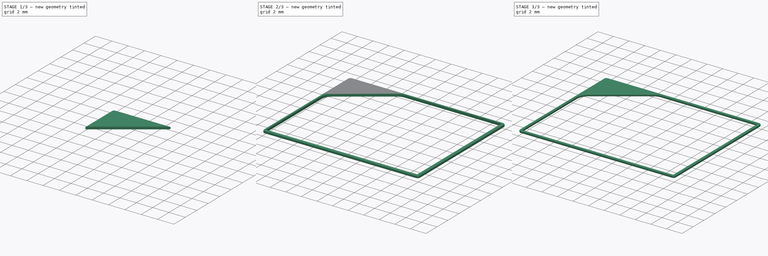
[diagram: build sequence overview — one tinted view per stage of 3, left to right]
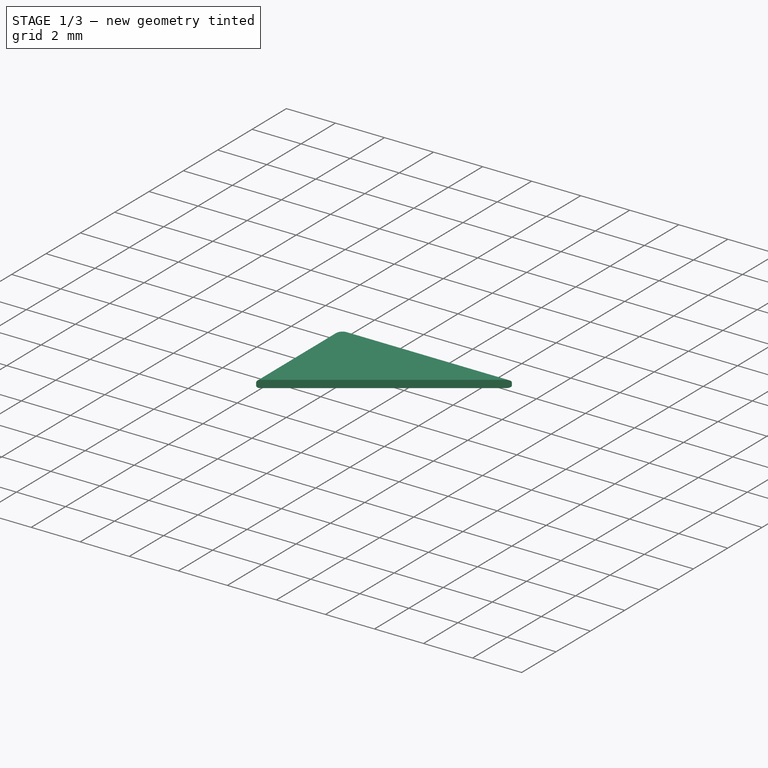
[diagram: stage 1 of 3 — iso view after this stage's code; geometry added in this stage tinted green]
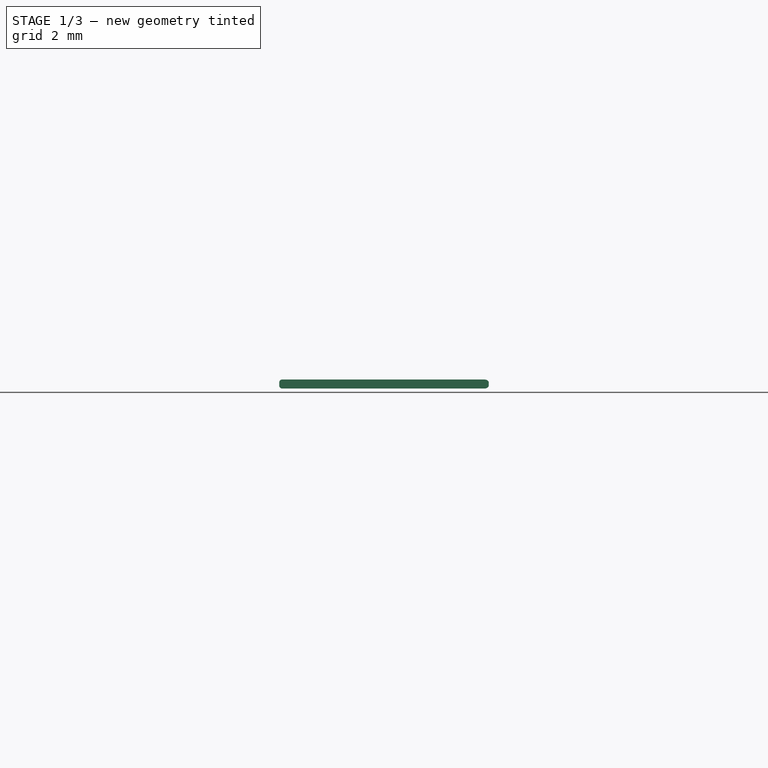
[diagram: stage 1 of 3 — front view after this stage's code; geometry added in this stage tinted green]
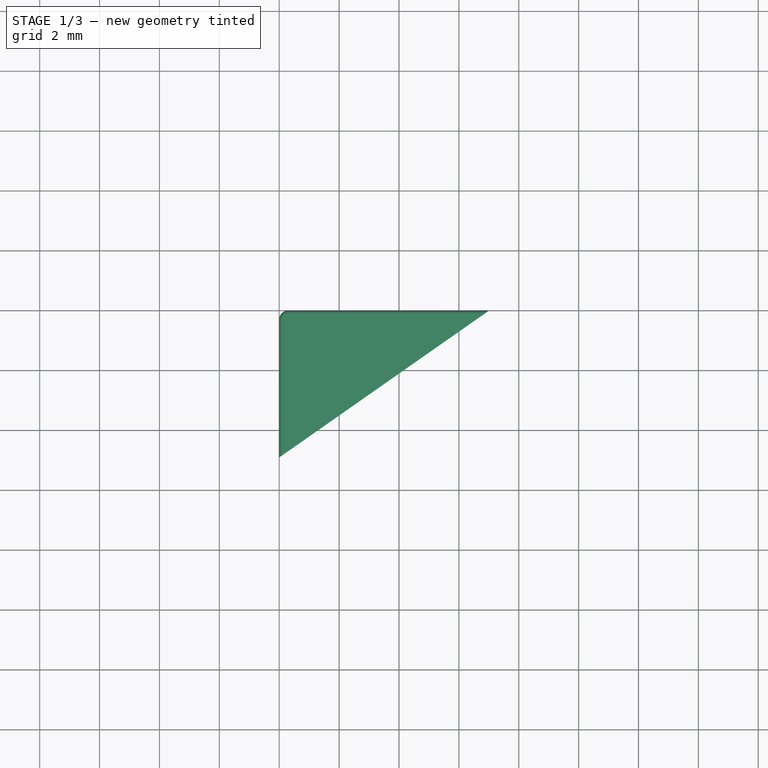
[diagram: stage 1 of 3 — top view after this stage's code; geometry added in this stage tinted green]
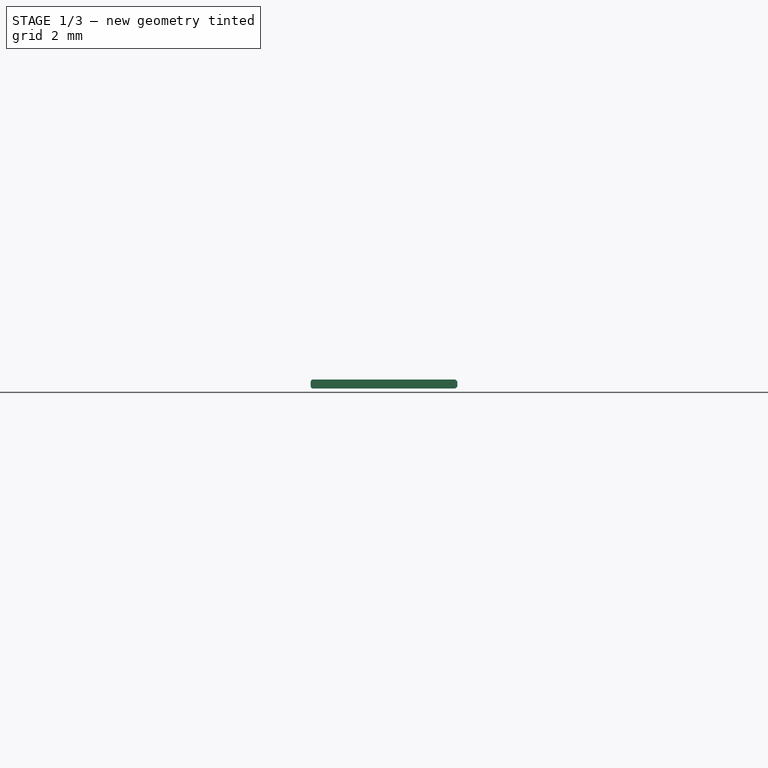
[diagram: stage 1 of 3 — right view after this stage's code; geometry added in this stage tinted green]
FCSTD DOCUMENT  (FreeCAD 0.17R13528 (Git))
Label: NutriFrameNormalV2
License: All rights reserved
LicenseURL: http://en.wikipedia.org/wiki/All_rights_reserved
objects: PartDesign::Fillet×6, Sketcher::SketchObject×2, PartDesign::Pad×2, PartDesign::Body×2
note: 14 computed .brp shape members not serialized (recipe doc carries the construction recipe); baked Part::Feature solids carry a one-line shape summary decoded from their .brp

FEATURE [PartDesign::Body] Body  label="Frame"
  Group = -> [Sketch,Pad,Fillet,Fillet001,Fillet002,Fillet003]
  Origin = -> Origin
  Tip = -> Fillet003
FEATURE [Sketcher::SketchObject] Sketch002
  MapMode = 5
  Support = -> [XY_Plane001]
  sketch-geometry (18):
    g0: LineSegment [constr] StartX=0.3 StartY=0 StartZ=0 EndX=19.7 EndY=0 EndZ=0
    g1: LineSegment [constr] StartX=19.65 StartY=15.7 StartZ=0 EndX=19.65 EndY=0.3 EndZ=0
    g2: LineSegment [constr] StartX=19.65 StartY=0.3 StartZ=0 EndX=0.3 EndY=0.3 EndZ=0
    g3: LineSegment [constr] StartX=0.3 StartY=0.3 StartZ=0 EndX=0.3 EndY=10.3489 EndZ=0
    g4: ArcOfCircle [constr] CenterX=0.3 CenterY=0.3 CenterZ=0 NormalX=0 NormalY=0 NormalZ=1 AngleXU=0 Radius=0.3 StartAngle=3.14159 EndAngle=4.71239
    g5: ArcOfCircle [constr] CenterX=19.7 CenterY=0.3 CenterZ=0 NormalX=0 NormalY=0 NormalZ=1 AngleXU=0 Radius=0.3 StartAngle=4.71239 EndAngle=6.28317
    g6: LineSegment [constr] StartX=20 StartY=15.7 StartZ=0 EndX=20 EndY=0.299995 EndZ=0
    g7: ArcOfCircle [constr] CenterX=19.7 CenterY=15.7 CenterZ=0 NormalX=0 NormalY=0 NormalZ=1 AngleXU=0 Radius=0.3 StartAngle=0 EndAngle=1.5708
    g8: LineSegment [constr] StartX=0.939635 StartY=11.5776 StartZ=0 EndX=6.43964 EndY=15.4287 EndZ=0
    g9: LineSegment [constr] StartX=7.3 StartY=15.7 StartZ=0 EndX=19.65 EndY=15.7 EndZ=0
    g10: ArcOfCircle [constr] CenterX=1.8 CenterY=10.3489 CenterZ=0 NormalX=0 NormalY=0 NormalZ=1 AngleXU=0 Radius=1.5 StartAngle=2.18166 EndAngle=3.14159
    g11: ArcOfCircle [constr] CenterX=7.3 CenterY=14.2 CenterZ=0 NormalX=0 NormalY=0 NormalZ=1 AngleXU=0 Radius=1.5 StartAngle=1.5708 EndAngle=2.18166
    g12: LineSegment [constr] StartX=0 StartY=0.3 StartZ=0 EndX=0 EndY=11.0985 EndZ=0
    g13: LineSegment [constr] StartX=19.7 StartY=16 StartZ=0 EndX=7 EndY=16 EndZ=0
    g14: LineSegment StartX=0 StartY=11.0985 StartZ=0 EndX=7 EndY=16 EndZ=0
    g15: LineSegment StartX=0 StartY=11.0985 StartZ=0 EndX=0 EndY=15.7 EndZ=0
    g16: LineSegment StartX=7 StartY=16 StartZ=0 EndX=0.3 EndY=16 EndZ=0
    g17: ArcOfCircle CenterX=0.3 CenterY=15.7 CenterZ=0 NormalX=0 NormalY=0 NormalZ=1 AngleXU=0 Radius=0.3 StartAngle=1.5708 EndAngle=3.14159
  constraints (48):
    c: Horizontal(g0)
    c: Coincident(g1,g2)
    c: Coincident(g2,g3)
    c: Horizontal(g2)
    c: Vertical(g1)
    c: Vertical(g3)
    c: Tangent(g0,g4) = -1.5708
    c: Tangent(g0,g5) = -1.5708
    c: Equal(g5,g4)
    c: DistanceY(g0,g1) = 0.3
    c: DistanceY(g-1,g0) = 0
    c: Coincident(g6,g5)
    c: Vertical(g6)
    c: Tangent(g6,g5)
    c: DistanceX(g1,g5) = 0.35
    c: Tangent(g7,g6) = 1.5708
    c: Coincident(g9,g1)
    c: Horizontal(g9)
    c: Tangent(g3,g10) = 1.5708
    c: Tangent(g8,g10) = 1.5708
    c: Tangent(g8,g11) = 1.5708
    c: Tangent(g9,g11) = 1.5708
    c: Equal(g10,g11)
    c: Angle(g3,g8) = 2.18166
    c: DistanceX(g8,g8) = 5.5
    c: Vertical(g12)
    c: Horizontal(g13)
    c: Coincident(g14,g12)
    c: Coincident(g14,g13)
    c: Parallel(g14,g8)
    c: DistanceX(g13,g9) = 0.3
    c: DistanceY(g1,g7) = 0.3
    c: DistanceX(g4,g2) = 0.3
    c: DistanceX(g4,g5) = 20
    c: DistanceY(g0,g7) = 16
    c: DistanceX(g-1,g4) = 0
    c: DistanceX(g12,g13) = 7
    c: Equal(g5,g7)
    c: Tangent(g12,g4) = 1.5708
    c: Tangent(g13,g7) = -1.5708
    c: Radius(g7) = 0.3
    c: Coincident(g15,g12)
    c: Vertical(g15)
    c: Coincident(g16,g13)
    c: Horizontal(g16)
    c: Tangent(g15,g17) = 1.5708
    c: Tangent(g16,g17) = -1.5708
    c: Equal(g4,g17)
FEATURE [PartDesign::Pad] Pad001
  Length = 0.3
  Length2 = 100
  Profile = -> Sketch002
  Type = 0
FEATURE [PartDesign::Fillet] Fillet004
  Base = -> Pad001 [Edge12,Edge10,Edge7]
  BaseFeature = -> Pad001
  Radius = 0.1
FEATURE [PartDesign::Fillet] Fillet005
  Base = -> Fillet004 [Edge8,Edge13,Edge12]
  BaseFeature = -> Fillet004
  Radius = 0.1
FEATURE [PartDesign::Body] Body001  label="Corner"
  Group = -> [Sketch002,Pad001,Fillet004,Fillet005]
  Origin = -> Origin001
  Tip = -> Fillet005
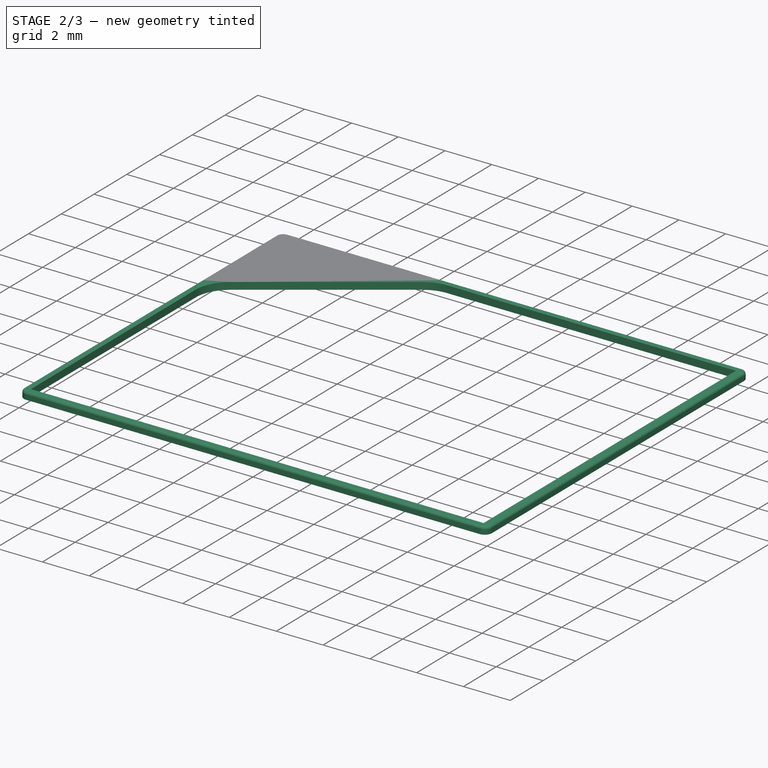
[diagram: stage 2 of 3 — iso view after this stage's code; geometry added in this stage tinted green]
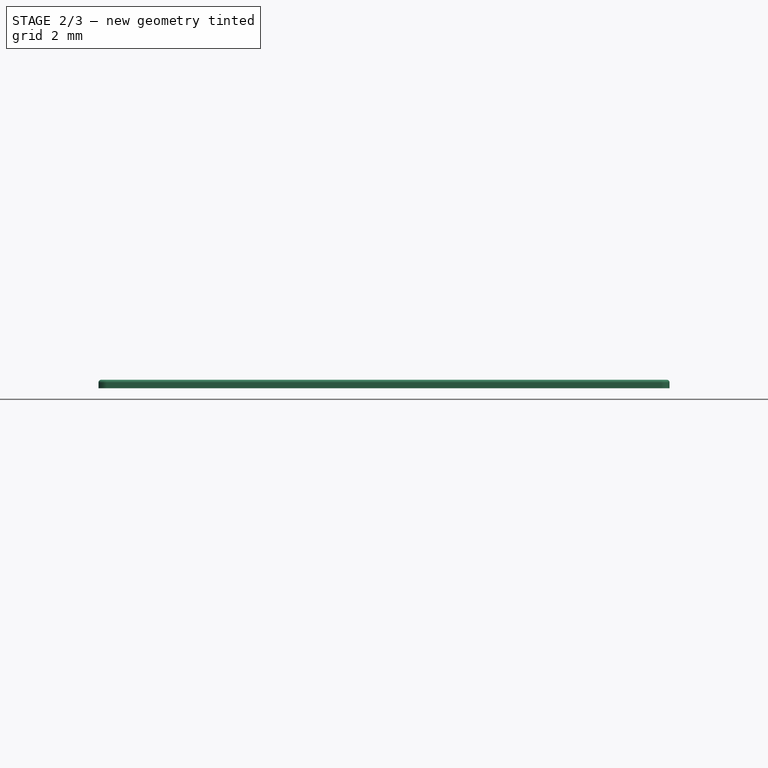
[diagram: stage 2 of 3 — front view after this stage's code; geometry added in this stage tinted green]
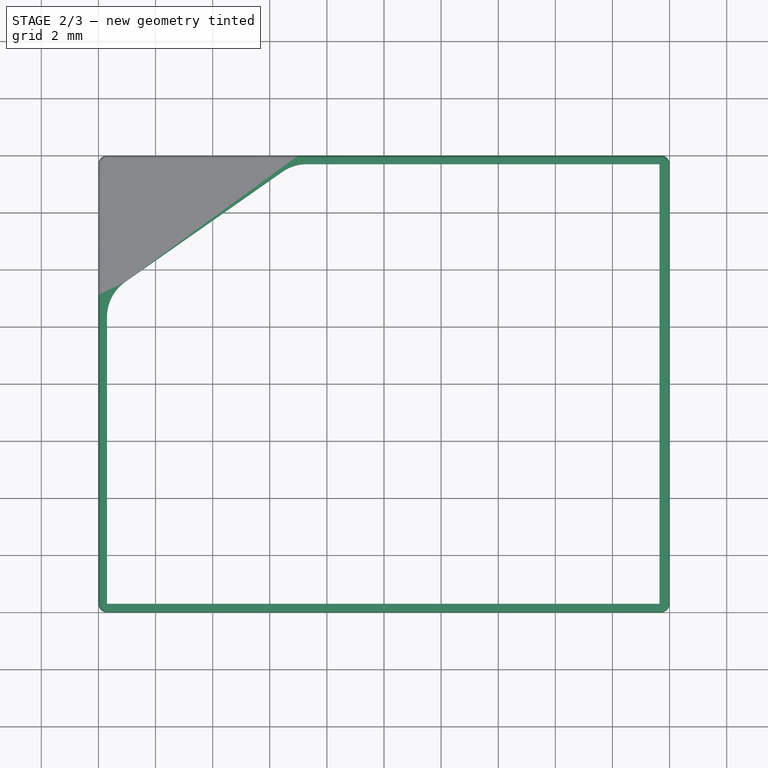
[diagram: stage 2 of 3 — top view after this stage's code; geometry added in this stage tinted green]
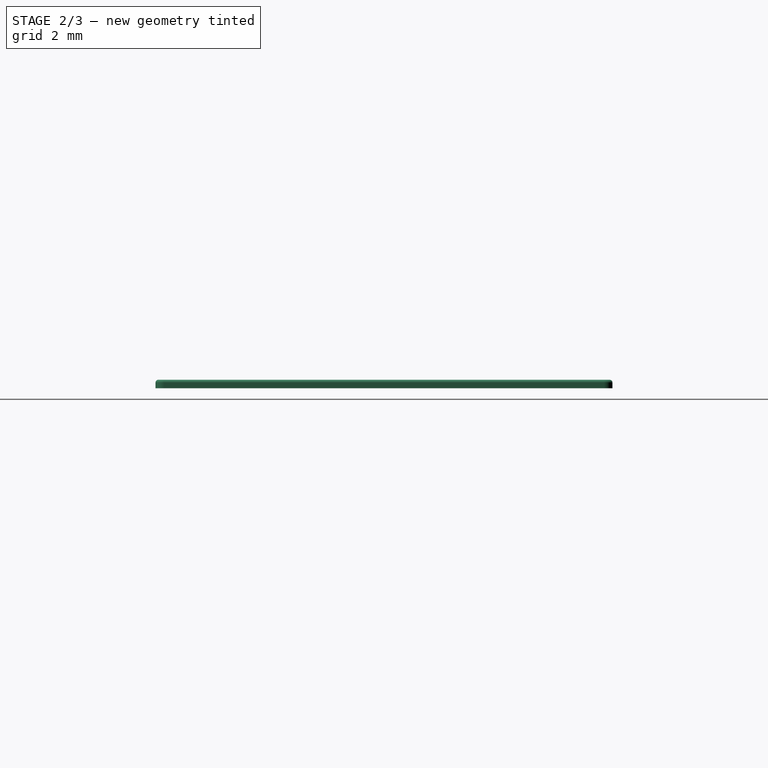
[diagram: stage 2 of 3 — right view after this stage's code; geometry added in this stage tinted green]
FEATURE [Sketcher::SketchObject] Sketch
  MapMode = 5
  Support = -> [XY_Plane]
  sketch-geometry (15):
    g0: LineSegment StartX=0.3 StartY=0 StartZ=0 EndX=19.7 EndY=0 EndZ=0
    g1: LineSegment StartX=19.65 StartY=15.7 StartZ=0 EndX=19.65 EndY=0.3 EndZ=0
    g2: LineSegment StartX=19.65 StartY=0.3 StartZ=0 EndX=0.3 EndY=0.3 EndZ=0
    g3: LineSegment StartX=0.3 StartY=0.3 StartZ=0 EndX=0.3 EndY=10.3489 EndZ=0
    g4: ArcOfCircle CenterX=0.3 CenterY=0.3 CenterZ=0 NormalX=0 NormalY=0 NormalZ=1 AngleXU=0 Radius=0.3 StartAngle=3.14159 EndAngle=4.71239
    g5: ArcOfCircle CenterX=19.7 CenterY=0.3 CenterZ=0 NormalX=0 NormalY=0 NormalZ=1 AngleXU=0 Radius=0.3 StartAngle=4.71239 EndAngle=6.28316
    g6: LineSegment StartX=20 StartY=15.7 StartZ=0 EndX=20 EndY=0.299993 EndZ=0
    g7: ArcOfCircle CenterX=19.7 CenterY=15.7 CenterZ=0 NormalX=0 NormalY=0 NormalZ=1 AngleXU=0 Radius=0.3 StartAngle=0 EndAngle=1.5708
    g8: LineSegment StartX=0.939635 StartY=11.5776 StartZ=0 EndX=6.43964 EndY=15.4287 EndZ=0
    g9: LineSegment StartX=7.3 StartY=15.7 StartZ=0 EndX=19.65 EndY=15.7 EndZ=0
    g10: ArcOfCircle CenterX=1.8 CenterY=10.3489 CenterZ=0 NormalX=0 NormalY=0 NormalZ=1 AngleXU=0 Radius=1.5 StartAngle=2.18166 EndAngle=3.14159
    g11: ArcOfCircle CenterX=7.3 CenterY=14.2 CenterZ=0 NormalX=0 NormalY=0 NormalZ=1 AngleXU=0 Radius=1.5 StartAngle=1.5708 EndAngle=2.18166
    g12: LineSegment StartX=0 StartY=0.3 StartZ=0 EndX=0 EndY=11.0985 EndZ=0
    g13: LineSegment StartX=19.7 StartY=16 StartZ=0 EndX=7 EndY=16 EndZ=0
    g14: LineSegment StartX=0 StartY=11.0985 StartZ=0 EndX=7 EndY=16 EndZ=0
  constraints (41):
    c: Horizontal(g0)
    c: Coincident(g1,g2)
    c: Coincident(g2,g3)
    c: Horizontal(g2)
    c: Vertical(g1)
    c: Vertical(g3)
    c: Tangent(g0,g4) = -1.5708
    c: Tangent(g0,g5) = -1.5708
    c: Equal(g5,g4)
    c: DistanceY(g0,g1) = 0.3
    c: DistanceY(g-1,g0) = 0
    c: Coincident(g6,g5)
    c: Vertical(g6)
    c: Tangent(g6,g5)
    c: DistanceX(g1,g5) = 0.35
    c: Tangent(g7,g6) = 1.5708
    c: Coincident(g9,g1)
    c: Horizontal(g9)
    c: Tangent(g3,g10) = 1.5708
    c: Tangent(g8,g10) = 1.5708
    c: Tangent(g8,g11) = 1.5708
    c: Tangent(g9,g11) = 1.5708
    c: Equal(g10,g11)
    c: Angle(g3,g8) = 2.18166
    c: DistanceX(g8,g8) = 5.5
    c: Vertical(g12)
    c: Horizontal(g13)
    c: Coincident(g14,g12)
    c: Coincident(g14,g13)
    c: Parallel(g14,g8)
    c: DistanceX(g13,g9) = 0.3
    c: DistanceY(g1,g7) = 0.3
    c: DistanceX(g4,g2) = 0.3
    c: DistanceX(g4,g5) = 20
    c: DistanceY(g0,g7) = 16
    c: DistanceX(g-1,g4) = 0
    c: DistanceX(g12,g13) = 7
    c: Equal(g5,g7)
    c: Tangent(g12,g4) = 1.5708
    c: Tangent(g13,g7) = -1.5708
    c: Radius(g7) = 0.3
FEATURE [PartDesign::Pad] Pad
  Length = 0.3
  Length2 = 100
  Profile = -> Sketch
  Type = 0
FEATURE [PartDesign::Fillet] Fillet
  Base = -> Pad [Edge24,Edge4,Edge7,Vertex6,Edge10,Edge13,Edge16,Edge19]
  BaseFeature = -> Pad
  Radius = 0.1
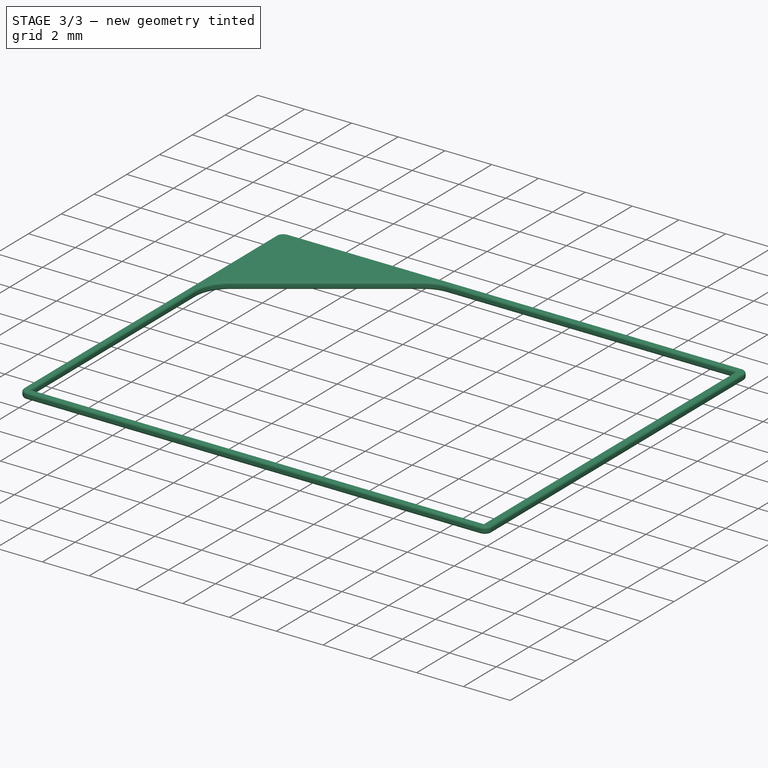
[diagram: stage 3 of 3 — iso view after this stage's code; geometry added in this stage tinted green]
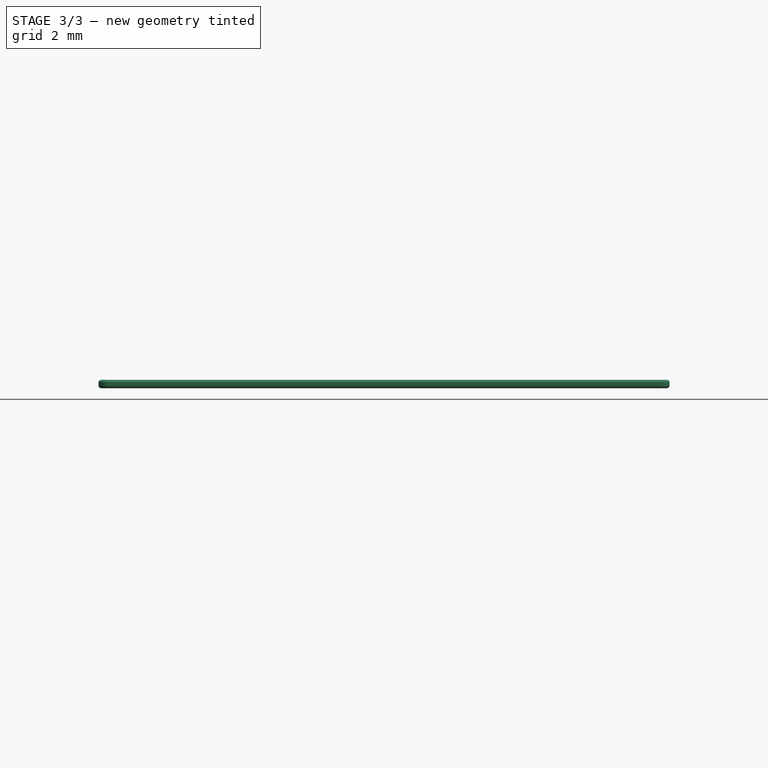
[diagram: stage 3 of 3 — front view after this stage's code; geometry added in this stage tinted green]
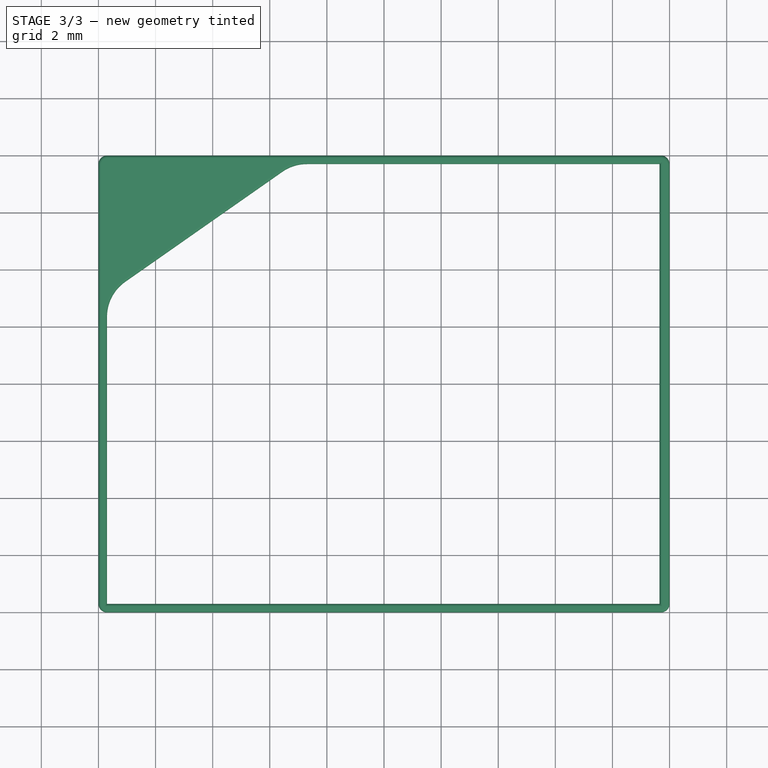
[diagram: stage 3 of 3 — top view after this stage's code; geometry added in this stage tinted green]
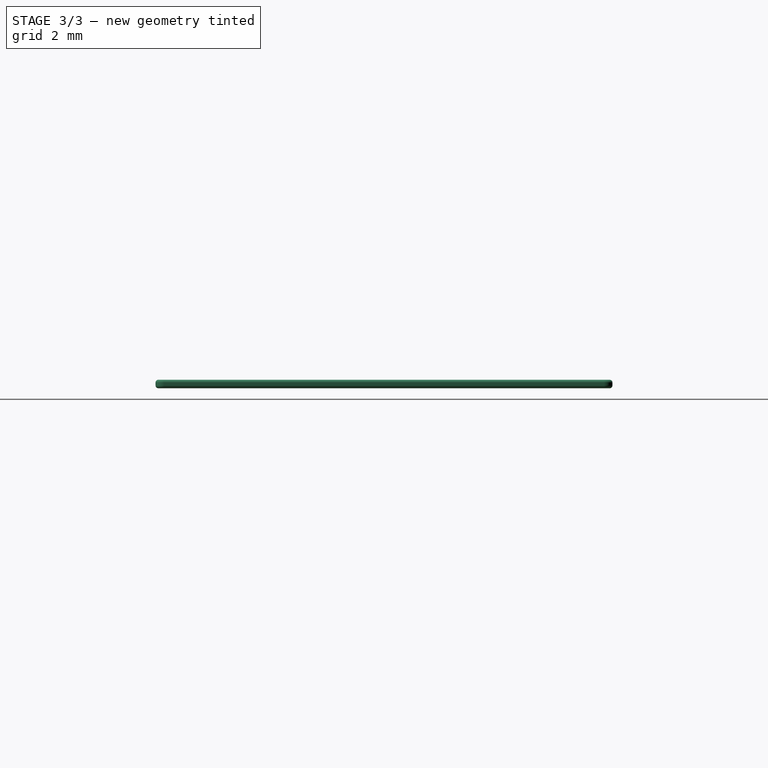
[diagram: stage 3 of 3 — right view after this stage's code; geometry added in this stage tinted green]
FEATURE [PartDesign::Fillet] Fillet001
  Base = -> Fillet [Edge40,Edge41,Edge42,Edge43,Edge37,Edge38,Edge39]
  BaseFeature = -> Fillet
  Radius = 0.1
FEATURE [PartDesign::Fillet] Fillet002
  Base = -> Fillet001 [Edge65,Edge66,Edge67,Edge68,Edge69,Vertex40,Edge64,Edge63]
  BaseFeature = -> Fillet001
  Radius = 0.1
FEATURE [PartDesign::Fillet] Fillet003
  Base = -> Fillet002 [Edge22,Edge28,Edge27,Edge26,Edge25,Edge24,Edge23]
  BaseFeature = -> Fillet002
  Radius = 0.1
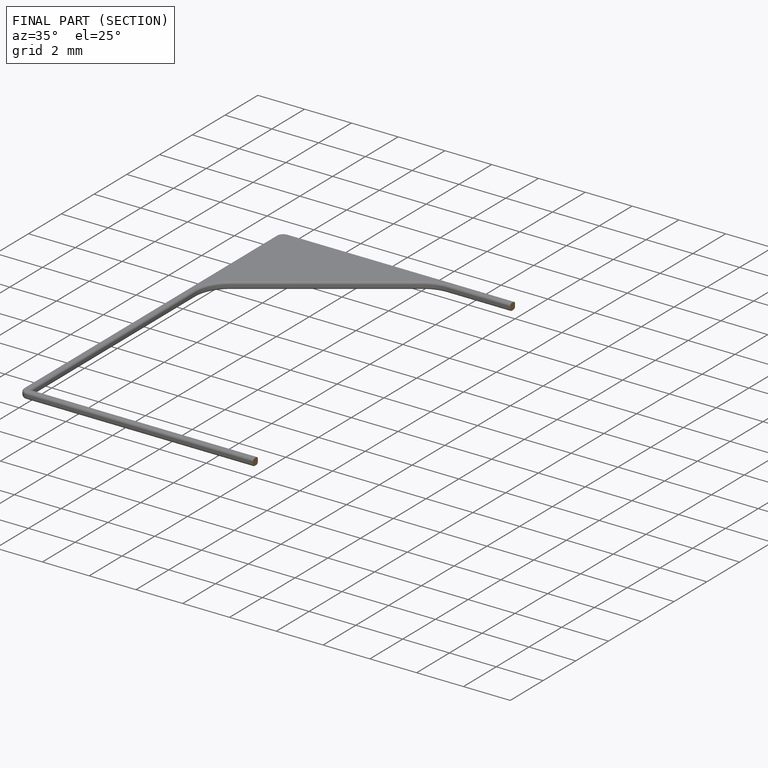
[diagram: finished part — half-section view (interior)]
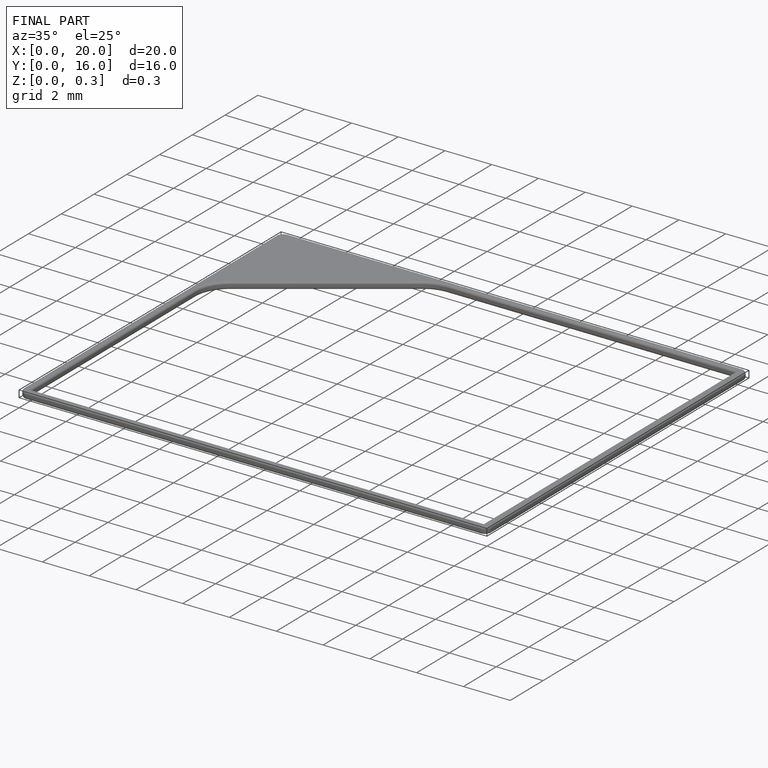
[diagram: finished part — iso view with bounding-box wireframe]
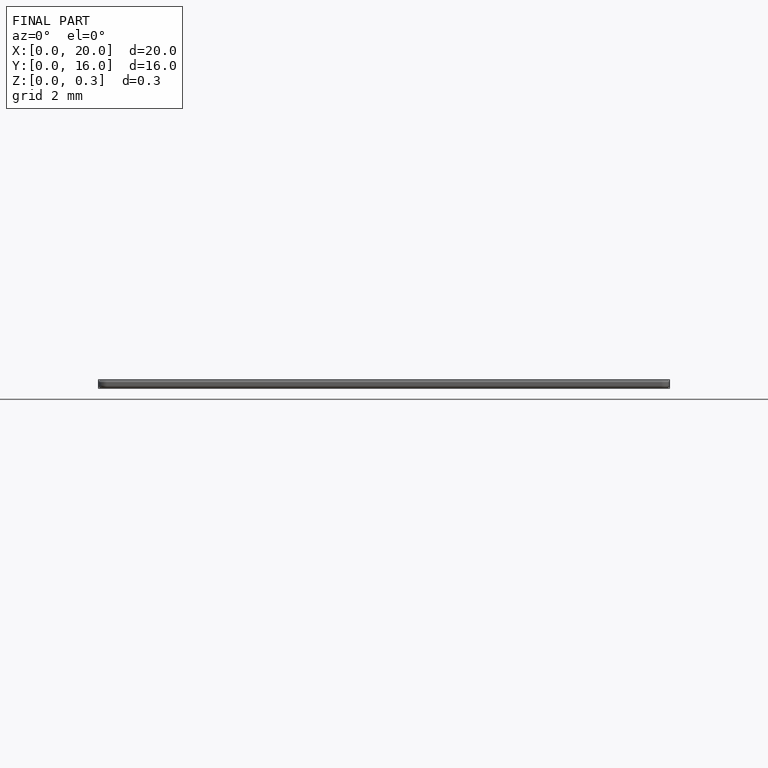
[diagram: finished part — front view with bounding-box wireframe]
